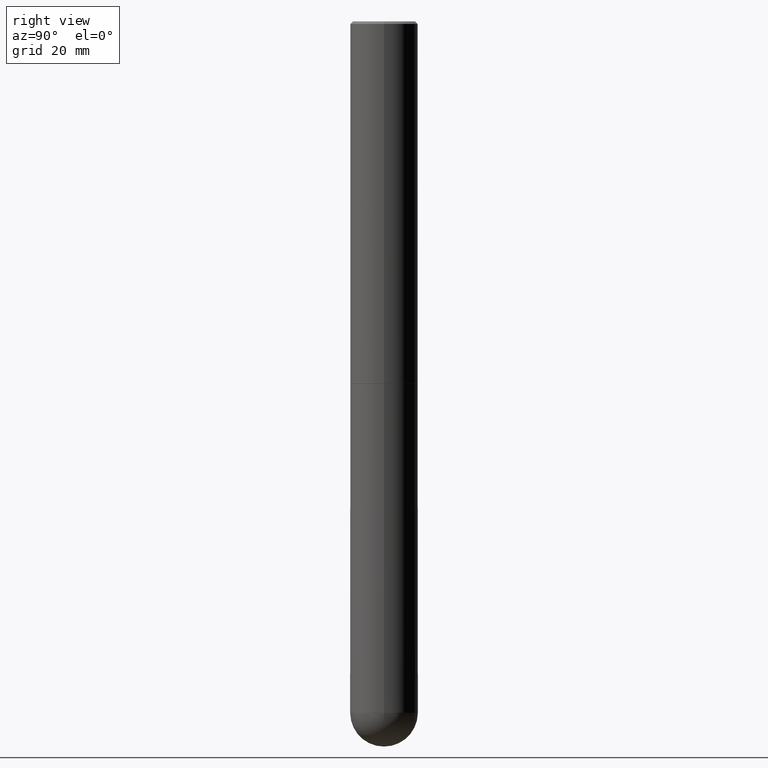
[diagram: clean part render]
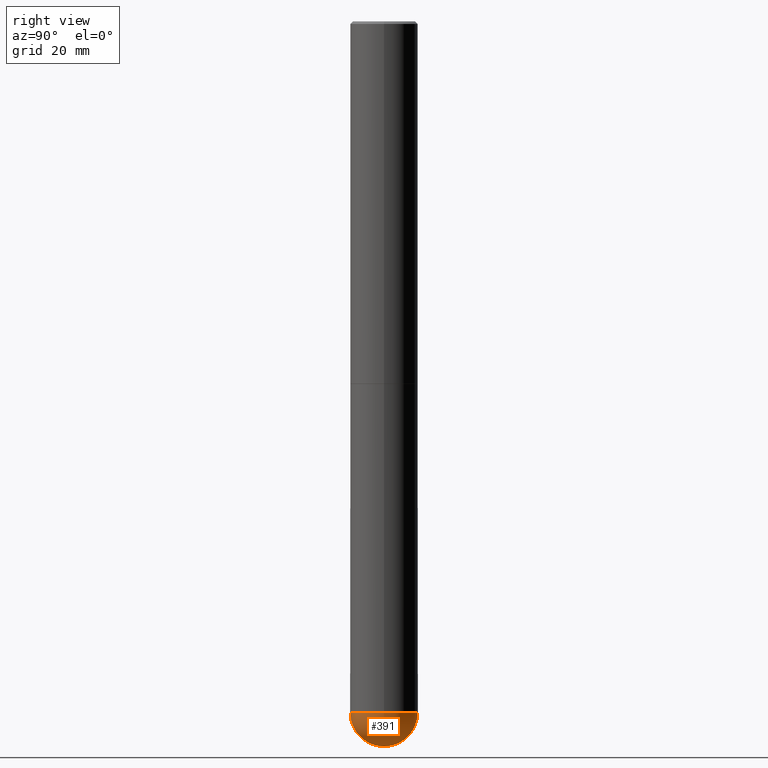
[diagram: same view with one face highlighted and labeled with its STEP entity id]
A machine part, right view. The second image highlights one B-rep face of the part: STEP entity #391.
In plain terms, the highlighted spherical surface has radius 7.0002 mm.
Its self-contained STEP definition (entity closure, byte-faithful):
#3 = AXIS2_PLACEMENT_3D ( 'NONE', #215, #186, #182 ) ;
#9 = VERTEX_POINT ( 'NONE', #366 ) ;
#16 = DIRECTION ( 'NONE',  ( 6.982962677686267499E-15, 1.000000000000000000, 0.000000000000000000 ) ) ;
#21 = CARTESIAN_POINT ( 'NONE',  ( 1.343662505402781410E-28, -2.013087315769307636E-14, -5.629900000000000126 ) ) ;
#25 = CIRCLE ( 'NONE', #323, 0.2756000000000000671 ) ;
#59 = AXIS2_PLACEMENT_3D ( 'NONE', #370, #296, #149 ) ;
#98 = SPHERICAL_SURFACE ( 'NONE', #3, 0.2756000000000000671 ) ;
#105 = ORIENTED_EDGE ( 'NONE', *, *, #169, .F. ) ;
#111 = DIRECTION ( 'NONE',  ( 1.000000000000000000, -6.982962677686264344E-15, 0.000000000000000000 ) ) ;
#132 = DIRECTION ( 'NONE',  ( -2.445468806185136597E-29, 3.491481338843145583E-15, 1.000000000000000000 ) ) ;
#135 = CIRCLE ( 'NONE', #152, 0.2756000000000000671 ) ;
#149 = DIRECTION ( 'NONE',  ( 1.000000000000000000, -6.982962677686264344E-15, 0.000000000000000000 ) ) ;
#152 = AXIS2_PLACEMENT_3D ( 'NONE', #259, #314, #16 ) ;
#169 = EDGE_CURVE ( 'NONE', #292, #316, #293, .T. ) ;
#171 = ORIENTED_EDGE ( 'NONE', *, *, #335, .T. ) ;
#182 = DIRECTION ( 'NONE',  ( 6.982962677686265922E-15, 1.000000000000000000, -3.964946289788479319E-15 ) ) ;
#186 = DIRECTION ( 'NONE',  ( -1.000000000000000000, 6.982962677686265922E-15, -4.883557194083112901E-29 ) ) ;
#194 = CARTESIAN_POINT ( 'NONE',  ( -1.958255779754700116E-15, -0.2756000000000199956, -5.629899999999999238 ) ) ;
#215 = CARTESIAN_POINT ( 'NONE',  ( 1.343662505402781410E-28, -2.013087315769307636E-14, -5.629900000000000126 ) ) ;
#216 = CIRCLE ( 'NONE', #59, 0.2756000000000000671 ) ;
#231 = EDGE_CURVE ( 'NONE', #233, #9, #216, .T. ) ;
#233 = VERTEX_POINT ( 'NONE', #271 ) ;
#245 = AXIS2_PLACEMENT_3D ( 'NONE', #21, #298, #266 ) ;
#259 = CARTESIAN_POINT ( 'NONE',  ( 1.343662505402781410E-28, -2.013087315769307636E-14, -5.629900000000000126 ) ) ;
#266 = DIRECTION ( 'NONE',  ( -7.105427357601001859E-15, -1.000000000000000000, 0.000000000000000000 ) ) ;
#271 = CARTESIAN_POINT ( 'NONE',  ( 0.2756000000000000671, -1.690749838334792865E-14, -5.629900000000000126 ) ) ;
#280 = EDGE_CURVE ( 'NONE', #316, #233, #25, .T. ) ;
#281 = FACE_OUTER_BOUND ( 'NONE', #290, .T. ) ;
#290 = EDGE_LOOP ( 'NONE', ( #105, #171, #363, #326 ) ) ;
#292 = VERTEX_POINT ( 'NONE', #309 ) ;
#293 = CIRCLE ( 'NONE', #245, 0.2756000000000000671 ) ;
#296 = DIRECTION ( 'NONE',  ( -2.445468806185136597E-29, 3.491481338843145583E-15, 1.000000000000000000 ) ) ;
#298 = DIRECTION ( 'NONE',  ( -1.000000000000000000, 7.105427357601001070E-15, -4.926315508542082329E-29 ) ) ;
#309 = CARTESIAN_POINT ( 'NONE',  ( 1.412238044847732931E-28, -2.107624978178599697E-14, -5.905499999999999972 ) ) ;
#314 = DIRECTION ( 'NONE',  ( 1.000000000000000000, -6.982962677686265922E-15, 4.883557194083112340E-29 ) ) ;
#316 = VERTEX_POINT ( 'NONE', #194 ) ;
#323 = AXIS2_PLACEMENT_3D ( 'NONE', #382, #132, #111 ) ;
#326 = ORIENTED_EDGE ( 'NONE', *, *, #280, .F. ) ;
#335 = EDGE_CURVE ( 'NONE', #292, #9, #135, .T. ) ;
#363 = ORIENTED_EDGE ( 'NONE', *, *, #231, .F. ) ;
#366 = CARTESIAN_POINT ( 'NONE',  ( 1.924504513970471427E-15, 0.2755999999999801942, -5.629900000000001015 ) ) ;
#370 = CARTESIAN_POINT ( 'NONE',  ( 1.376774483194169922E-28, -1.965669078955302449E-14, -5.629900000000000126 ) ) ;
#382 = CARTESIAN_POINT ( 'NONE',  ( 1.376774483194169922E-28, -1.965669078955302449E-14, -5.629900000000000126 ) ) ;
#391 = ADVANCED_FACE ( 'NONE', ( #281 ), #98, .T. ) ;